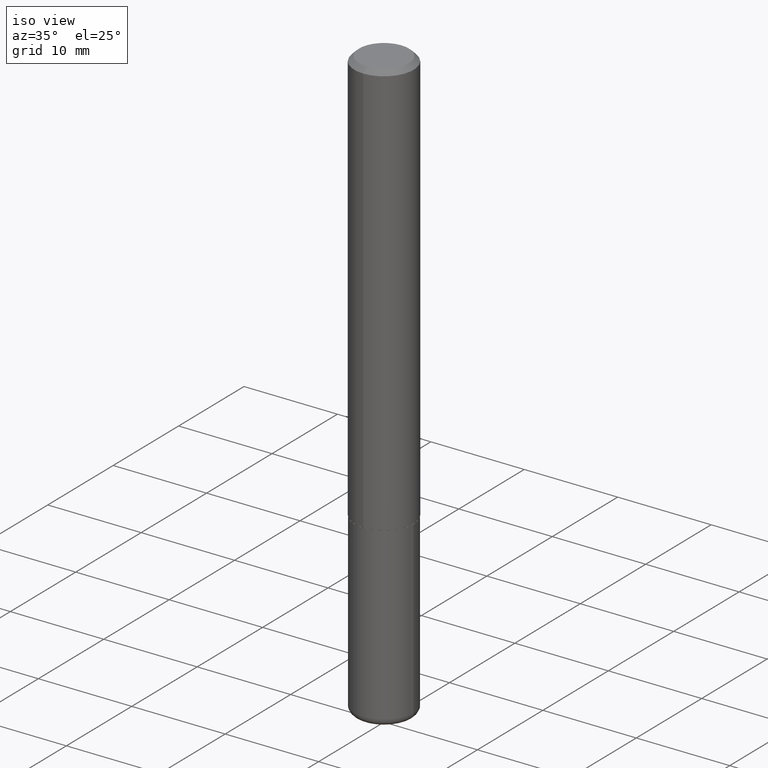
[diagram: clean part render]
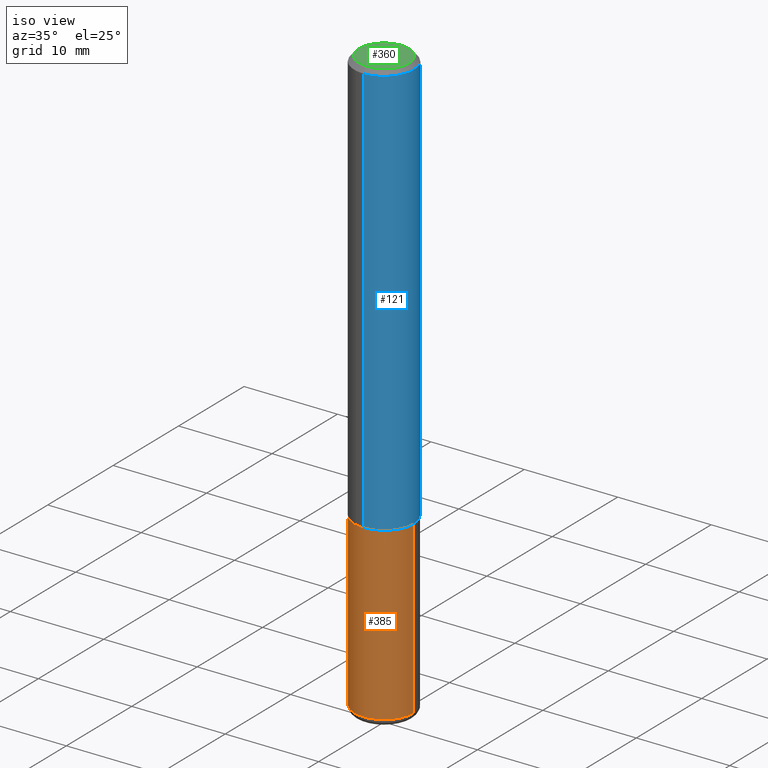
[diagram: same view with three faces highlighted in distinct colors, each labeled with its STEP entity id]
A machine part, iso view with three faces highlighted in distinct colors.
Their STEP definitions:

[orange] entity #385 — the highlighted cylindrical surface (edge-blend (fillet) strip) has radius 3.175 mm, axis along (-0, 0, 1).
#4 = CARTESIAN_POINT ( 'NONE',  ( 0.1250000000000000000, -6.982962677686288010E-15, -1.750000000000000222 ) ) ;
#18 = DIRECTION ( 'NONE',  ( 1.000000000000000000, -6.982962677686266711E-15, 4.876176775795935793E-29 ) ) ;
#26 = LINE ( 'NONE', #344, #145 ) ;
#34 = ORIENTED_EDGE ( 'NONE', *, *, #346, .F. ) ;
#35 = DIRECTION ( 'NONE',  ( -2.445468806185136597E-29, 3.491481338843145583E-15, 1.000000000000000000 ) ) ;
#40 = LINE ( 'NONE', #131, #335 ) ;
#47 = ORIENTED_EDGE ( 'NONE', *, *, #164, .T. ) ;
#56 = DIRECTION ( 'NONE',  ( -2.445468806185136597E-29, 3.491481338843145583E-15, 1.000000000000000000 ) ) ;
#65 = EDGE_CURVE ( 'NONE', #73, #409, #26, .T. ) ;
#70 = DIRECTION ( 'NONE',  ( 1.000000000000000000, -6.982962677686270655E-15, 0.000000000000000000 ) ) ;
#73 = VERTEX_POINT ( 'NONE', #255 ) ;
#84 = DIRECTION ( 'NONE',  ( 1.000000000000000000, -6.982962677686262766E-15, 0.000000000000000000 ) ) ;
#119 = CARTESIAN_POINT ( 'NONE',  ( 4.279570410823989044E-29, -6.110092342975505460E-15, -1.750000000000000222 ) ) ;
#131 = CARTESIAN_POINT ( 'NONE',  ( -0.1250000000000000000, 8.881784197001252323E-16, -6.148668862818632227E-30 ) ) ;
#133 = EDGE_CURVE ( 'NONE', #377, #182, #40, .T. ) ;
#145 = VECTOR ( 'NONE', #382, 39.37007874015748143 ) ;
#164 = EDGE_CURVE ( 'NONE', #377, #73, #247, .T. ) ;
#171 = DIRECTION ( 'NONE',  ( -2.445468806185136877E-29, 3.491481338843145188E-15, 1.000000000000000000 ) ) ;
#182 = VERTEX_POINT ( 'NONE', #396 ) ;
#247 = CIRCLE ( 'NONE', #386, 0.1250000000000000000 ) ;
#249 = CARTESIAN_POINT ( 'NONE',  ( 0.000000000000000000, 0.000000000000000000, 0.000000000000000000 ) ) ;
#255 = CARTESIAN_POINT ( 'NONE',  ( 0.1250000000000001110, -9.496829241653354912E-15, -2.470000000000000195 ) ) ;
#264 = CARTESIAN_POINT ( 'NONE',  ( 6.040307951277287977E-29, -8.623958906942569995E-15, -2.470000000000000195 ) ) ;
#280 = CARTESIAN_POINT ( 'NONE',  ( -0.1250000000000001110, -7.735780487242444763E-15, -2.470000000000000195 ) ) ;
#310 = CIRCLE ( 'NONE', #358, 0.1250000000000000000 ) ;
#312 = ORIENTED_EDGE ( 'NONE', *, *, #133, .F. ) ;
#335 = VECTOR ( 'NONE', #171, 39.37007874015748143 ) ;
#337 = CYLINDRICAL_SURFACE ( 'NONE', #413, 0.1250000000000000000 ) ;
#344 = CARTESIAN_POINT ( 'NONE',  ( 0.1250000000000000000, -8.728703347107833388E-16, 6.095220969744919741E-30 ) ) ;
#346 = EDGE_CURVE ( 'NONE', #182, #409, #310, .T. ) ;
#354 = EDGE_LOOP ( 'NONE', ( #312, #47, #415, #34 ) ) ;
#358 = AXIS2_PLACEMENT_3D ( 'NONE', #119, #56, #84 ) ;
#377 = VERTEX_POINT ( 'NONE', #280 ) ;
#381 = DIRECTION ( 'NONE',  ( -2.445468806185136597E-29, 3.491481338843145583E-15, 1.000000000000000000 ) ) ;
#382 = DIRECTION ( 'NONE',  ( -2.445468806185136877E-29, 3.491481338843145188E-15, 1.000000000000000000 ) ) ;
#385 = ADVANCED_FACE ( 'NONE', ( #411 ), #337, .T. ) ;
#386 = AXIS2_PLACEMENT_3D ( 'NONE', #264, #35, #70 ) ;
#396 = CARTESIAN_POINT ( 'NONE',  ( -0.1250000000000000000, -6.478847205258913284E-15, -1.750000000000000222 ) ) ;
#409 = VERTEX_POINT ( 'NONE', #4 ) ;
#411 = FACE_OUTER_BOUND ( 'NONE', #354, .T. ) ;
#413 = AXIS2_PLACEMENT_3D ( 'NONE', #249, #381, #18 ) ;
#415 = ORIENTED_EDGE ( 'NONE', *, *, #65, .T. ) ;

[blue] entity #121 — the highlighted cylindrical surface (edge-blend (fillet) strip) has radius 3.175 mm, axis along (-0, 0, 1).
#7 = CIRCLE ( 'NONE', #403, 0.1250000000000002498 ) ;
#11 = DIRECTION ( 'NONE',  ( -6.982962677686266711E-15, -1.000000000000000000, 3.490276172475858772E-15 ) ) ;
#20 = VERTEX_POINT ( 'NONE', #184 ) ;
#36 = EDGE_CURVE ( 'NONE', #398, #20, #7, .T. ) ;
#49 = ORIENTED_EDGE ( 'NONE', *, *, #196, .T. ) ;
#61 = CARTESIAN_POINT ( 'NONE',  ( 4.278596836013182697E-29, -6.104493025660276744E-15, -1.749000000000000110 ) ) ;
#62 = CYLINDRICAL_SURFACE ( 'NONE', #93, 0.1250000000000001110 ) ;
#67 = CARTESIAN_POINT ( 'NONE',  ( 4.892620738722911906E-31, -6.980552344951725975E-17, -0.02000000000000002470 ) ) ;
#72 = DIRECTION ( 'NONE',  ( -2.446310369361453361E-29, 3.490276172475858772E-15, 1.000000000000000000 ) ) ;
#80 = DIRECTION ( 'NONE',  ( -2.446310369361453361E-29, 3.490276172475858378E-15, 1.000000000000000000 ) ) ;
#87 = LINE ( 'NONE', #283, #225 ) ;
#93 = AXIS2_PLACEMENT_3D ( 'NONE', #366, #72, #11 ) ;
#94 = FACE_OUTER_BOUND ( 'NONE', #250, .T. ) ;
#104 = AXIS2_PLACEMENT_3D ( 'NONE', #67, #166, #172 ) ;
#117 = ORIENTED_EDGE ( 'NONE', *, *, #370, .F. ) ;
#121 = ADVANCED_FACE ( 'NONE', ( #94 ), #62, .T. ) ;
#122 = DIRECTION ( 'NONE',  ( -6.982962677686265133E-15, -1.000000000000000000, 4.370956789862812472E-15 ) ) ;
#137 = DIRECTION ( 'NONE',  ( -2.446310369361453361E-29, 3.490276172475858378E-15, 1.000000000000000000 ) ) ;
#144 = ORIENTED_EDGE ( 'NONE', *, *, #170, .F. ) ;
#153 = VERTEX_POINT ( 'NONE', #362 ) ;
#166 = DIRECTION ( 'NONE',  ( -2.446310369361453361E-29, 3.490276172475858772E-15, 1.000000000000000000 ) ) ;
#170 = EDGE_CURVE ( 'NONE', #176, #153, #371, .T. ) ;
#172 = DIRECTION ( 'NONE',  ( -6.982962677686265922E-15, -1.000000000000000000, 3.483106191921935554E-15 ) ) ;
#176 = VERTEX_POINT ( 'NONE', #202 ) ;
#184 = CARTESIAN_POINT ( 'NONE',  ( 8.881784197001479121E-16, 0.1249999999999941019, -1.749000000000000554 ) ) ;
#190 = DIRECTION ( 'NONE',  ( -2.446310369361453361E-29, 3.490276172475858772E-15, 1.000000000000000000 ) ) ;
#191 = CARTESIAN_POINT ( 'NONE',  ( -8.728703347107421208E-16, -0.1250000000000063560, -1.748999999999999666 ) ) ;
#196 = EDGE_CURVE ( 'NONE', #20, #153, #394, .T. ) ;
#202 = CARTESIAN_POINT ( 'NONE',  ( -8.575622497214408537E-16, -0.1250000000000000555, -0.01999999999999959102 ) ) ;
#225 = VECTOR ( 'NONE', #80, 39.37007874015748143 ) ;
#250 = EDGE_LOOP ( 'NONE', ( #417, #49, #144, #117 ) ) ;
#283 = CARTESIAN_POINT ( 'NONE',  ( -8.728703347107841277E-16, -0.1250000000000001110, 4.362845215594827410E-16 ) ) ;
#343 = VECTOR ( 'NONE', #137, 39.37007874015748143 ) ;
#362 = CARTESIAN_POINT ( 'NONE',  ( 8.728703347107837333E-16, 0.1249999999999999306, -0.02000000000000046185 ) ) ;
#366 = CARTESIAN_POINT ( 'NONE',  ( 0.000000000000000000, 0.000000000000000000, 0.000000000000000000 ) ) ;
#370 = EDGE_CURVE ( 'NONE', #398, #176, #87, .T. ) ;
#371 = CIRCLE ( 'NONE', #104, 0.1250000000000000000 ) ;
#393 = CARTESIAN_POINT ( 'NONE',  ( 8.881784197001260212E-16, 0.1250000000000001110, -4.362845215594827410E-16 ) ) ;
#394 = LINE ( 'NONE', #393, #343 ) ;
#398 = VERTEX_POINT ( 'NONE', #191 ) ;
#403 = AXIS2_PLACEMENT_3D ( 'NONE', #61, #190, #122 ) ;
#417 = ORIENTED_EDGE ( 'NONE', *, *, #36, .T. ) ;

[green] entity #360 — the highlighted planar face has unit normal (0, -0, -1).
#5 = EDGE_CURVE ( 'NONE', #179, #235, #12, .T. ) ;
#12 = CIRCLE ( 'NONE', #270, 0.1049999999999999267 ) ;
#27 = FACE_OUTER_BOUND ( 'NONE', #140, .T. ) ;
#42 = CARTESIAN_POINT ( 'NONE',  ( 8.030407079339205337E-16, 0.1049999999999999267, -2.769667782864213337E-16 ) ) ;
#82 = DIRECTION ( 'NONE',  ( -6.982962677686265922E-15, -1.000000000000000000, 3.490276172475858378E-15 ) ) ;
#106 = CARTESIAN_POINT ( 'NONE',  ( -7.889572697437255223E-16, -0.1049999999999999267, 4.559912179335083715E-16 ) ) ;
#113 = ORIENTED_EDGE ( 'NONE', *, *, #322, .T. ) ;
#116 = PLANE ( 'NONE',  #205 ) ;
#140 = EDGE_LOOP ( 'NONE', ( #319, #113 ) ) ;
#178 = CARTESIAN_POINT ( 'NONE',  ( -2.189746715388963618E-45, 3.124223679955351557E-31, 8.951221982354351893E-17 ) ) ;
#179 = VERTEX_POINT ( 'NONE', #42 ) ;
#205 = AXIS2_PLACEMENT_3D ( 'NONE', #305, #242, #342 ) ;
#214 = DIRECTION ( 'NONE',  ( -6.982962677686265922E-15, -1.000000000000000000, 3.490276172475858378E-15 ) ) ;
#216 = AXIS2_PLACEMENT_3D ( 'NONE', #178, #240, #82 ) ;
#217 = DIRECTION ( 'NONE',  ( -2.446310369361453361E-29, 3.490276172475858772E-15, 1.000000000000000000 ) ) ;
#235 = VERTEX_POINT ( 'NONE', #106 ) ;
#240 = DIRECTION ( 'NONE',  ( -2.446310369361453361E-29, 3.490276172475858772E-15, 1.000000000000000000 ) ) ;
#242 = DIRECTION ( 'NONE',  ( 2.446310369361453080E-29, -3.490276172475858378E-15, -1.000000000000000000 ) ) ;
#245 = CARTESIAN_POINT ( 'NONE',  ( -2.189746715388963618E-45, 3.124223679955351557E-31, 8.951221982354351893E-17 ) ) ;
#270 = AXIS2_PLACEMENT_3D ( 'NONE', #245, #217, #214 ) ;
#305 = CARTESIAN_POINT ( 'NONE',  ( 7.332110811570574327E-16, 0.1049999999999999267, -3.217228881981931301E-16 ) ) ;
#319 = ORIENTED_EDGE ( 'NONE', *, *, #5, .T. ) ;
#322 = EDGE_CURVE ( 'NONE', #235, #179, #324, .T. ) ;
#324 = CIRCLE ( 'NONE', #216, 0.1049999999999999267 ) ;
#342 = DIRECTION ( 'NONE',  ( 6.982962677686265922E-15, 1.000000000000000000, -3.490276172475858378E-15 ) ) ;
#360 = ADVANCED_FACE ( 'NONE', ( #27 ), #116, .F. ) ;